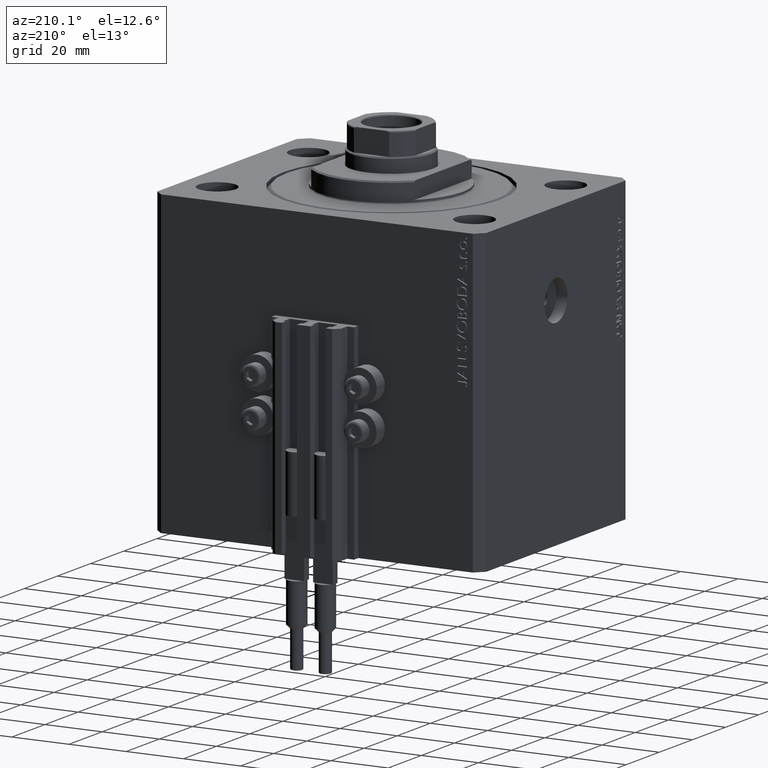
[diagram: clean part render]
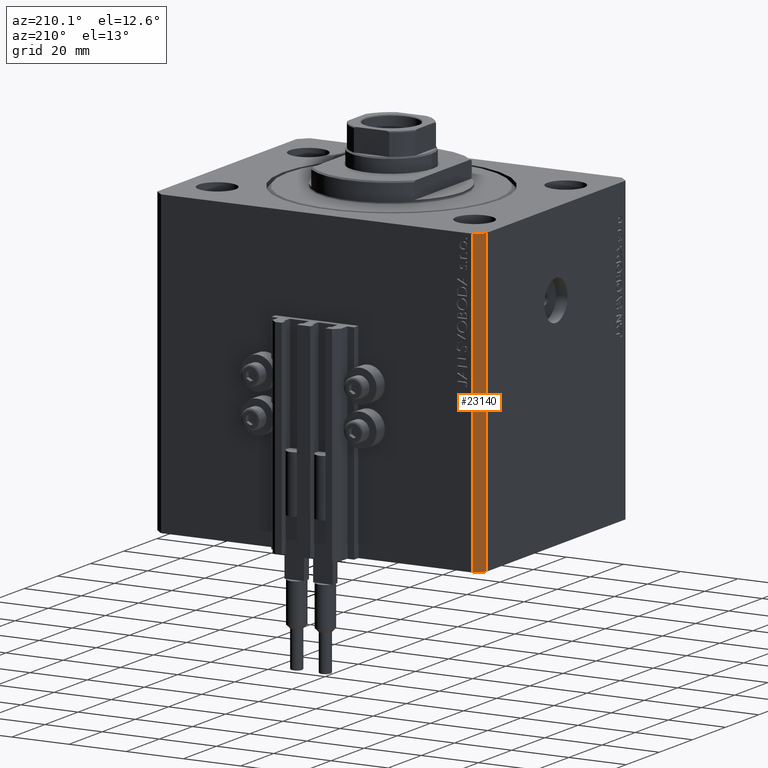
[diagram: same view with one face highlighted and labeled with its STEP entity id]
A machine part, auxiliary view. The second image highlights one B-rep face of the part: STEP entity #23140.
In plain terms, the highlighted planar face has unit normal (-0.7071, 0.7071, 0).
Its self-contained STEP definition (entity closure, byte-faithful):
#3155 = CARTESIAN_POINT ( 'NONE',  ( -57.49999999999998579, 42.00000000000000711, -105.0000000000000000 ) ) ;
#3620 = CARTESIAN_POINT ( 'NONE',  ( -54.49999999999999289, 45.00000000000000000, 0.000000000000000000 ) ) ;
#5000 = CARTESIAN_POINT ( 'NONE',  ( -54.49999999999999289, 45.00000000000000000, -105.0000000000000000 ) ) ;
#5442 = EDGE_LOOP ( 'NONE', ( #28504, #39276, #33160, #43883 ) ) ;
#9716 = FACE_OUTER_BOUND ( 'NONE', #5442, .T. ) ;
#9793 = VECTOR ( 'NONE', #42917, 1000.000000000000000 ) ;
#12878 = EDGE_CURVE ( 'NONE', #40183, #19756, #26061, .T. ) ;
#14829 = DIRECTION ( 'NONE',  ( -0.7071067811865483499, -0.7071067811865466846, 0.000000000000000000 ) ) ;
#16508 = EDGE_CURVE ( 'NONE', #21633, #32261, #20319, .T. ) ;
#18723 = CARTESIAN_POINT ( 'NONE',  ( -54.49999999999999289, 45.00000000000000000, 0.000000000000000000 ) ) ;
#19171 = CARTESIAN_POINT ( 'NONE',  ( -54.49999999999999289, 45.00000000000000000, -105.0000000000000000 ) ) ;
#19756 = VERTEX_POINT ( 'NONE', #28332 ) ;
#20319 = LINE ( 'NONE', #19171, #46391 ) ;
#20382 = VECTOR ( 'NONE', #14829, 1000.000000000000000 ) ;
#21614 = DIRECTION ( 'NONE',  ( -0.7071067811865466846, 0.7071067811865484609, 0.000000000000000000 ) ) ;
#21633 = VERTEX_POINT ( 'NONE', #5000 ) ;
#21659 = LINE ( 'NONE', #3155, #25197 ) ;
#23140 = ADVANCED_FACE ( 'NONE', ( #9716 ), #24560, .T. ) ;
#24560 = PLANE ( 'NONE',  #32853 ) ;
#25197 = VECTOR ( 'NONE', #36751, 1000.000000000000000 ) ;
#26061 = LINE ( 'NONE', #18723, #20382 ) ;
#27653 = DIRECTION ( 'NONE',  ( -0.7071067811865483499, -0.7071067811865466846, 0.000000000000000000 ) ) ;
#28332 = CARTESIAN_POINT ( 'NONE',  ( -57.49999999999998579, 42.00000000000000711, 0.000000000000000000 ) ) ;
#28504 = ORIENTED_EDGE ( 'NONE', *, *, #12878, .F. ) ;
#28908 = EDGE_CURVE ( 'NONE', #32261, #19756, #21659, .T. ) ;
#32261 = VERTEX_POINT ( 'NONE', #43130 ) ;
#32853 = AXIS2_PLACEMENT_3D ( 'NONE', #45321, #21614, #36466 ) ;
#33160 = ORIENTED_EDGE ( 'NONE', *, *, #16508, .T. ) ;
#36466 = DIRECTION ( 'NONE',  ( -0.7071067811865483499, -0.7071067811865465735, 0.000000000000000000 ) ) ;
#36751 = DIRECTION ( 'NONE',  ( 0.000000000000000000, 0.000000000000000000, 1.000000000000000000 ) ) ;
#39276 = ORIENTED_EDGE ( 'NONE', *, *, #40743, .F. ) ;
#39978 = LINE ( 'NONE', #43168, #9793 ) ;
#40183 = VERTEX_POINT ( 'NONE', #3620 ) ;
#40743 = EDGE_CURVE ( 'NONE', #21633, #40183, #39978, .T. ) ;
#42917 = DIRECTION ( 'NONE',  ( 0.000000000000000000, 0.000000000000000000, 1.000000000000000000 ) ) ;
#43130 = CARTESIAN_POINT ( 'NONE',  ( -57.49999999999998579, 42.00000000000000711, -105.0000000000000000 ) ) ;
#43168 = CARTESIAN_POINT ( 'NONE',  ( -54.49999999999999289, 45.00000000000000000, -105.0000000000000000 ) ) ;
#43883 = ORIENTED_EDGE ( 'NONE', *, *, #28908, .T. ) ;
#45321 = CARTESIAN_POINT ( 'NONE',  ( -54.49999999999999289, 45.00000000000000000, -105.0000000000000000 ) ) ;
#46391 = VECTOR ( 'NONE', #27653, 1000.000000000000000 ) ;